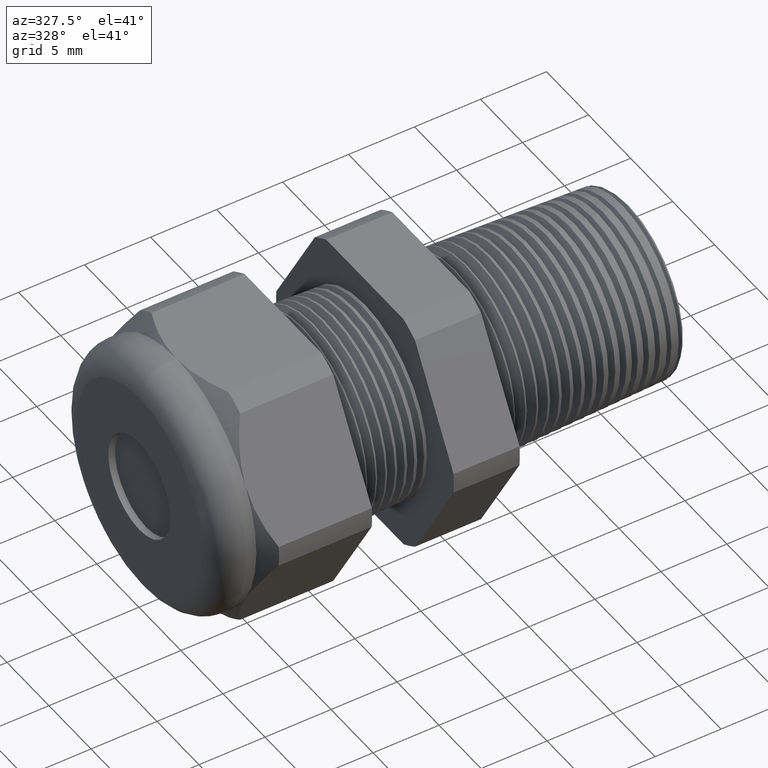
[diagram: clean part render]
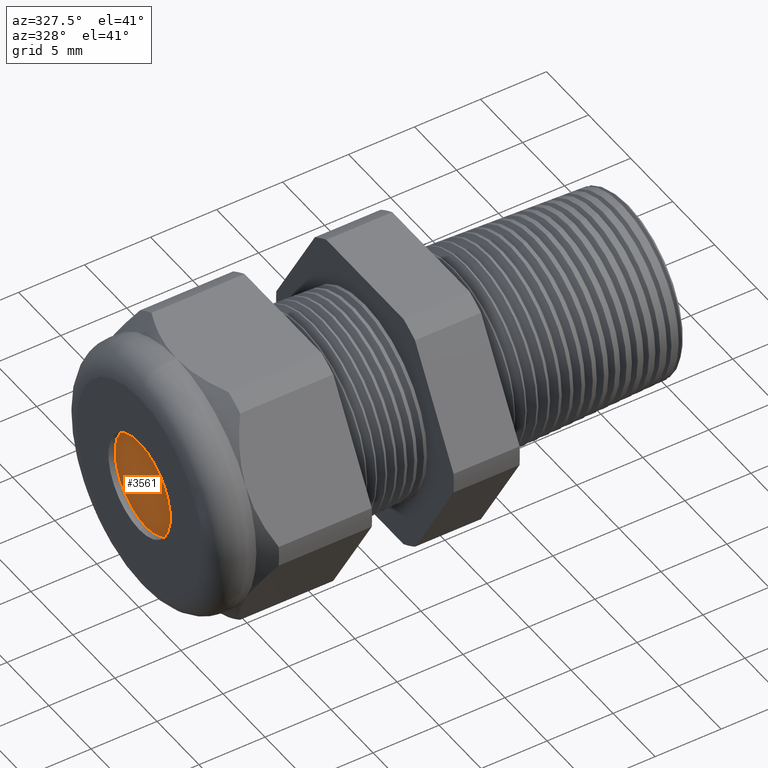
[diagram: same view with one face highlighted and labeled with its STEP entity id]
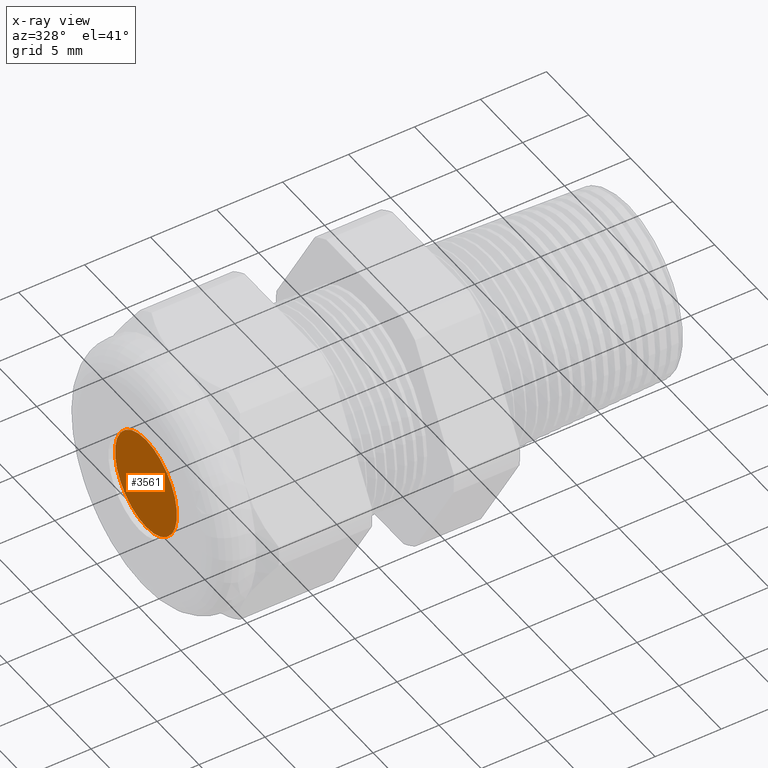
[diagram: x-ray of the same camera — body ghosted, the highlighted face saturated]
A machine part, auxiliary view. The second image highlights one B-rep face of the part: STEP entity #3561.
The next image is the same camera in x-ray: the body ghosted, the highlighted face saturated — about 0% of this face is hidden behind the body in this view.
In plain terms, the highlighted planar face has unit normal (-1, 0, 0).
Its self-contained STEP definition (entity closure, byte-faithful):
#404 = CIRCLE ( 'NONE', #467, 0.1449999999999999900 ) ;
#462 = CARTESIAN_POINT ( 'NONE',  ( -1.159999999999999900, 0.0000000000000000000, 0.1449999999999999900 ) ) ;
#463 = CARTESIAN_POINT ( 'NONE',  ( -1.159999999999999900, 1.775737858763661900E-017, -0.1449999999999999900 ) ) ;
#464 = DIRECTION ( 'NONE',  ( 0.0000000000000000000, 0.0000000000000000000, 1.000000000000000000 ) ) ;
#465 = DIRECTION ( 'NONE',  ( -1.000000000000000000, 0.0000000000000000000, 0.0000000000000000000 ) ) ;
#466 = CARTESIAN_POINT ( 'NONE',  ( -1.159999999999999900, 0.0000000000000000000, 0.0000000000000000000 ) ) ;
#467 = AXIS2_PLACEMENT_3D ( 'NONE', #466, #465, #464 ) ;
#547 = DIRECTION ( 'NONE',  ( 0.0000000000000000000, 0.0000000000000000000, 1.000000000000000000 ) ) ;
#548 = DIRECTION ( 'NONE',  ( -1.000000000000000000, 0.0000000000000000000, 0.0000000000000000000 ) ) ;
#549 = AXIS2_PLACEMENT_3D ( 'NONE', #555, #548, #547 ) ;
#550 = CIRCLE ( 'NONE', #549, 0.1449999999999999900 ) ;
#555 = CARTESIAN_POINT ( 'NONE',  ( -1.159999999999999900, 0.0000000000000000000, 0.0000000000000000000 ) ) ;
#557 = DIRECTION ( 'NONE',  ( 0.0000000000000000000, 0.0000000000000000000, 1.000000000000000000 ) ) ;
#558 = DIRECTION ( 'NONE',  ( -1.000000000000000000, 0.0000000000000000000, 0.0000000000000000000 ) ) ;
#559 = CARTESIAN_POINT ( 'NONE',  ( -1.159999999999999900, 0.0000000000000000000, 0.0000000000000000000 ) ) ;
#560 = AXIS2_PLACEMENT_3D ( 'NONE', #559, #558, #557 ) ;
#562 = PLANE ( 'NONE',  #560 ) ;
#563 = FACE_OUTER_BOUND ( 'NONE', #3562, .T. ) ;
#3510 = EDGE_CURVE ( 'NONE', #3511, #3512, #404, .T. ) ;
#3511 = VERTEX_POINT ( 'NONE', #463 ) ;
#3512 = VERTEX_POINT ( 'NONE', #462 ) ;
#3561 = ADVANCED_FACE ( 'NONE', ( #563 ), #562, .T. ) ;
#3562 = EDGE_LOOP ( 'NONE', ( #3573, #3574 ) ) ;
#3566 = EDGE_CURVE ( 'NONE', #3512, #3511, #550, .T. ) ;
#3573 = ORIENTED_EDGE ( 'NONE', *, *, #3566, .T. ) ;
#3574 = ORIENTED_EDGE ( 'NONE', *, *, #3510, .T. ) ;